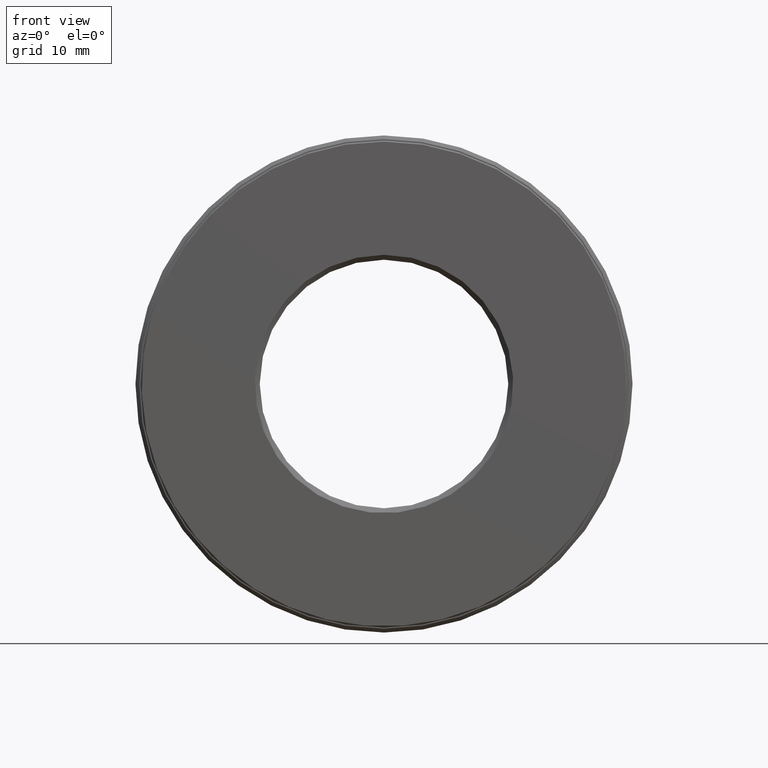
[diagram: clean part render]
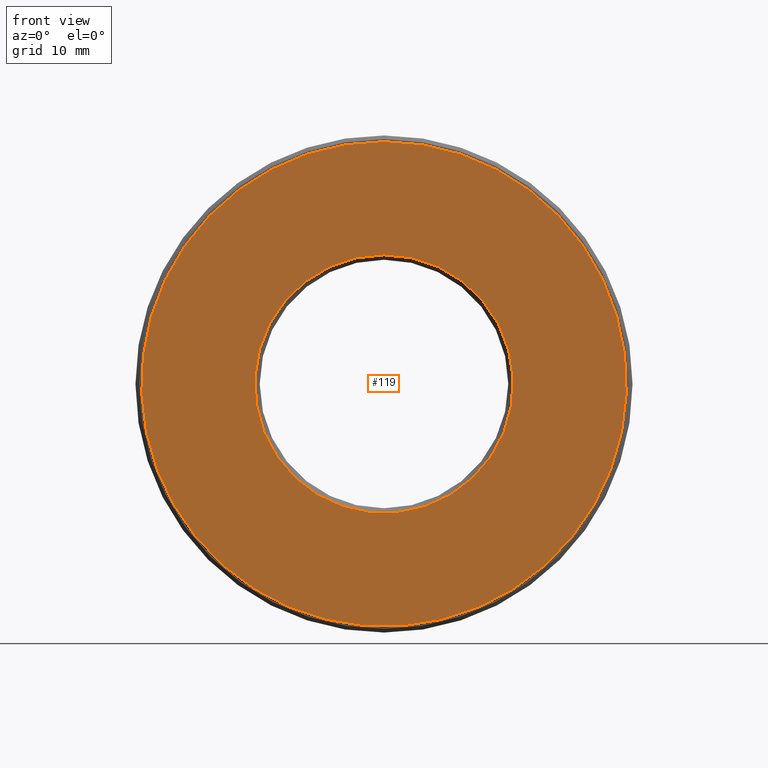
[diagram: same view with one face highlighted and labeled with its STEP entity id]
A machine part, front view. The second image highlights one B-rep face of the part: STEP entity #119.
In plain terms, the highlighted planar face has unit normal (-0, 1, 0).
Its self-contained STEP definition (entity closure, byte-faithful):
#3 = FACE_BOUND ( 'NONE', #256, .T. ) ;
#36 = DIRECTION ( 'NONE',  ( -0.0000000000000000000, 1.000000000000000000, -0.0000000000000000000 ) ) ;
#103 = CIRCLE ( 'NONE', #125, 0.9749999999999999800 ) ;
#119 = ADVANCED_FACE ( 'NONE', ( #142, #3 ), #527, .F. ) ;
#125 = AXIS2_PLACEMENT_3D ( 'NONE', #294, #344, #423 ) ;
#131 = ORIENTED_EDGE ( 'NONE', *, *, #592, .T. ) ;
#142 = FACE_OUTER_BOUND ( 'NONE', #427, .T. ) ;
#165 = EDGE_CURVE ( 'NONE', #462, #462, #103, .T. ) ;
#192 = DIRECTION ( 'NONE',  ( -0.0000000000000000000, 1.000000000000000000, 0.0000000000000000000 ) ) ;
#241 = DIRECTION ( 'NONE',  ( 0.0000000000000000000, 0.0000000000000000000, 1.000000000000000000 ) ) ;
#247 = AXIS2_PLACEMENT_3D ( 'NONE', #456, #36, #323 ) ;
#256 = EDGE_LOOP ( 'NONE', ( #131 ) ) ;
#286 = CARTESIAN_POINT ( 'NONE',  ( -9.956752322577165600E-033, 2.667820306312757000E-018, 0.0000000000000000000 ) ) ;
#294 = CARTESIAN_POINT ( 'NONE',  ( 0.0000000000000000000, -6.296055922898107200E-017, 0.0000000000000000000 ) ) ;
#323 = DIRECTION ( 'NONE',  ( 0.0000000000000000000, 0.0000000000000000000, 1.000000000000000000 ) ) ;
#344 = DIRECTION ( 'NONE',  ( -0.0000000000000000000, 1.000000000000000000, -0.0000000000000000000 ) ) ;
#370 = CARTESIAN_POINT ( 'NONE',  ( 0.0000000000000000000, 6.829619984160658000E-017, 0.5200000000000000200 ) ) ;
#397 = CIRCLE ( 'NONE', #247, 0.5200000000000000200 ) ;
#423 = DIRECTION ( 'NONE',  ( 0.0000000000000000000, 0.0000000000000000000, 1.000000000000000000 ) ) ;
#427 = EDGE_LOOP ( 'NONE', ( #484 ) ) ;
#440 = AXIS2_PLACEMENT_3D ( 'NONE', #286, #192, #241 ) ;
#456 = CARTESIAN_POINT ( 'NONE',  ( 0.0000000000000000000, 6.829619984160658000E-017, 0.0000000000000000000 ) ) ;
#462 = VERTEX_POINT ( 'NONE', #559 ) ;
#484 = ORIENTED_EDGE ( 'NONE', *, *, #165, .F. ) ;
#488 = VERTEX_POINT ( 'NONE', #370 ) ;
#527 = PLANE ( 'NONE',  #440 ) ;
#559 = CARTESIAN_POINT ( 'NONE',  ( 0.0000000000000000000, -6.296055922898107200E-017, 0.9749999999999999800 ) ) ;
#592 = EDGE_CURVE ( 'NONE', #488, #488, #397, .T. ) ;